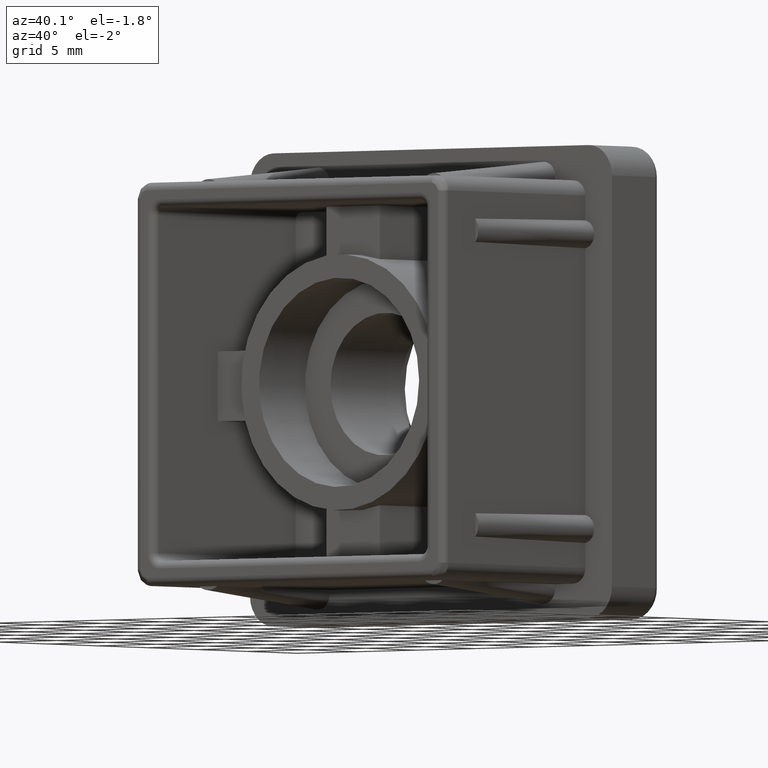
[diagram: clean part render]
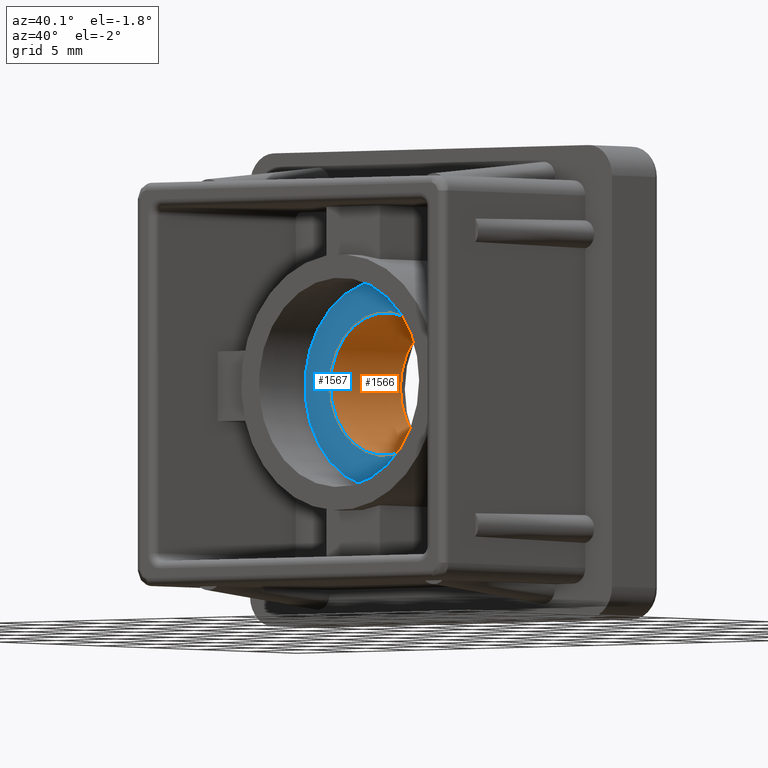
[diagram: same view with the hole feature highlighted: cylindrical wall and planar end face, labeled with their STEP entity ids]
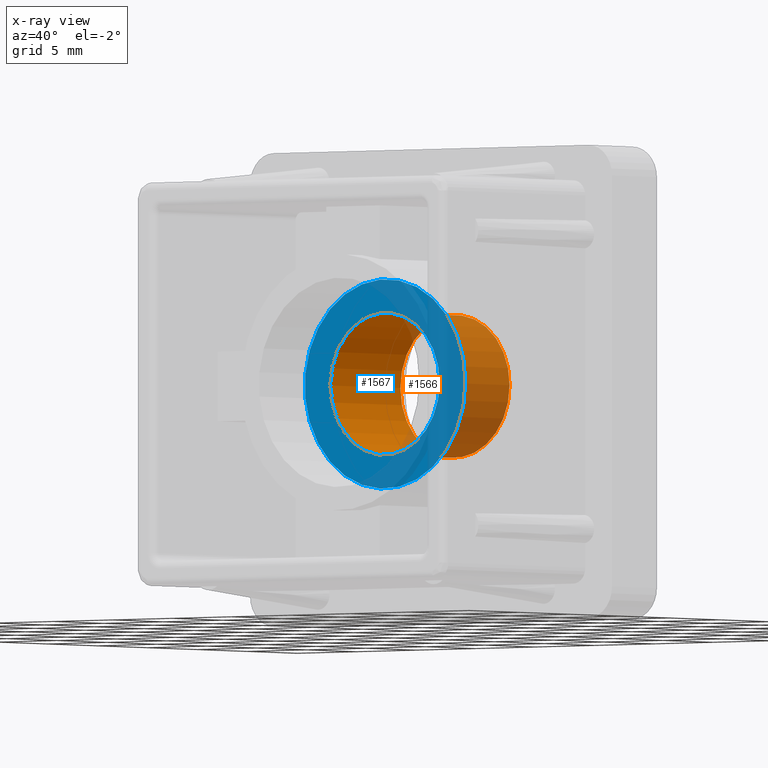
[diagram: x-ray of the same camera — body ghosted, the hole faces saturated]
A machine part, auxiliary view. The highlighted faces form one hole feature of diameter 9.2 mm: the cylindrical wall (entity #1566, orange) and its adjacent planar end face (entity #1567, blue) — they share a circular edge in the B-rep.
The next image is the same camera in x-ray (body ghosted, the hole faces saturated) — the bore reads through the body.
Wall:
#47=FACE_BOUND('',#568,.T.);
#383=CYLINDRICAL_SURFACE('',#1728,4.6);
#469=FACE_OUTER_BOUND('',#567,.T.);
#567=EDGE_LOOP('',(#1450));
#568=EDGE_LOOP('',(#1451));
#657=CIRCLE('',#1724,4.6);
#659=CIRCLE('',#1729,4.6);
#801=VERTEX_POINT('',#3015);
#803=VERTEX_POINT('',#3022);
#1025=EDGE_CURVE('',#801,#801,#657,.T.);
#1027=EDGE_CURVE('',#803,#803,#659,.T.);
#1450=ORIENTED_EDGE('',*,*,#1025,.T.);
#1451=ORIENTED_EDGE('',*,*,#1027,.F.);
#1566=ADVANCED_FACE('',(#469,#47),#383,.F.);
#1724=AXIS2_PLACEMENT_3D('',#3016,#2170,#2171);
#1728=AXIS2_PLACEMENT_3D('',#3021,#2178,#2179);
#1729=AXIS2_PLACEMENT_3D('',#3023,#2180,#2181);
#2170=DIRECTION('center_axis',(0.,1.,0.));
#2171=DIRECTION('ref_axis',(1.,0.,0.));
#2178=DIRECTION('center_axis',(0.,-1.,0.));
#2179=DIRECTION('ref_axis',(-1.,0.,0.));
#2180=DIRECTION('center_axis',(0.,1.,0.));
#2181=DIRECTION('ref_axis',(-1.,0.,0.));
#3015=CARTESIAN_POINT('',(17.6,16.6,6.66133814775094E-15));
#3016=CARTESIAN_POINT('Origin',(13.,16.6,6.66133814775094E-15));
#3021=CARTESIAN_POINT('Origin',(13.,14.2,6.66133814775094E-15));
#3022=CARTESIAN_POINT('',(17.6,9.6,7.22467567535872E-15));
#3023=CARTESIAN_POINT('Origin',(13.,9.60000000000001,6.66133814775094E-15));
End face:
#48=FACE_BOUND('',#570,.T.);
#88=PLANE('',#1730);
#470=FACE_OUTER_BOUND('',#569,.T.);
#569=EDGE_LOOP('',(#1452));
#570=EDGE_LOOP('',(#1453));
#659=CIRCLE('',#1729,4.6);
#660=CIRCLE('',#1731,6.75);
#803=VERTEX_POINT('',#3022);
#804=VERTEX_POINT('',#3025);
#1027=EDGE_CURVE('',#803,#803,#659,.T.);
#1028=EDGE_CURVE('',#804,#804,#660,.T.);
#1452=ORIENTED_EDGE('',*,*,#1028,.F.);
#1453=ORIENTED_EDGE('',*,*,#1027,.T.);
#1567=ADVANCED_FACE('',(#470,#48),#88,.F.);
#1729=AXIS2_PLACEMENT_3D('',#3023,#2180,#2181);
#1730=AXIS2_PLACEMENT_3D('',#3024,#2182,#2183);
#1731=AXIS2_PLACEMENT_3D('',#3026,#2184,#2185);
#2180=DIRECTION('center_axis',(0.,1.,0.));
#2181=DIRECTION('ref_axis',(-1.,0.,0.));
#2182=DIRECTION('center_axis',(0.,1.,0.));
#2183=DIRECTION('ref_axis',(0.,0.,1.));
#2184=DIRECTION('center_axis',(0.,1.,0.));
#2185=DIRECTION('ref_axis',(-1.,0.,0.));
#3022=CARTESIAN_POINT('',(17.6,9.6,7.22467567535872E-15));
#3023=CARTESIAN_POINT('Origin',(13.,9.60000000000001,6.66133814775094E-15));
#3024=CARTESIAN_POINT('Origin',(13.,9.60000000000001,6.59280586228025E-15));
#3025=CARTESIAN_POINT('',(19.75,9.6,7.4879747371754E-15));
#3026=CARTESIAN_POINT('Origin',(13.,9.60000000000001,6.66133814775094E-15));